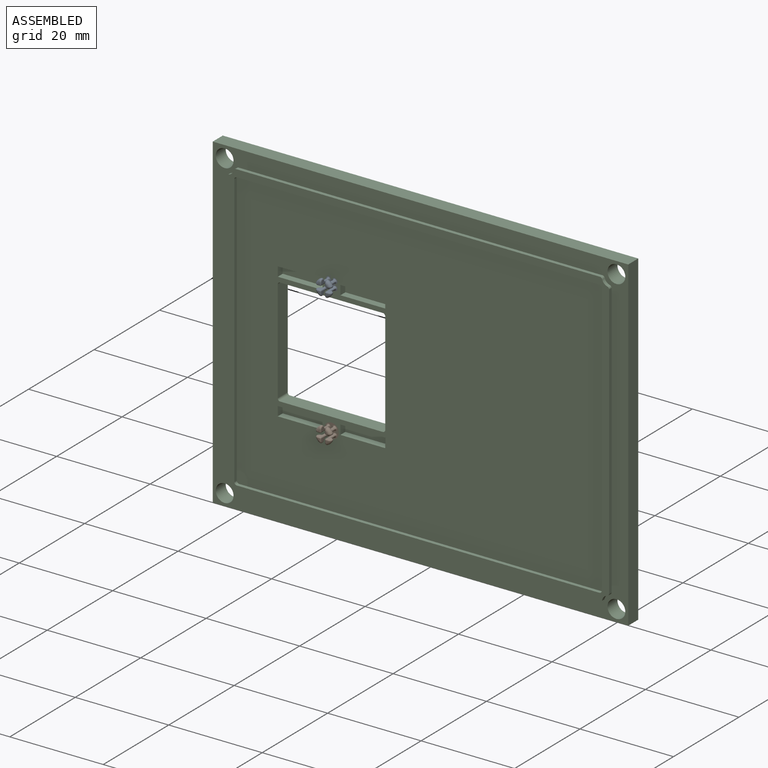
[diagram: assembled view]
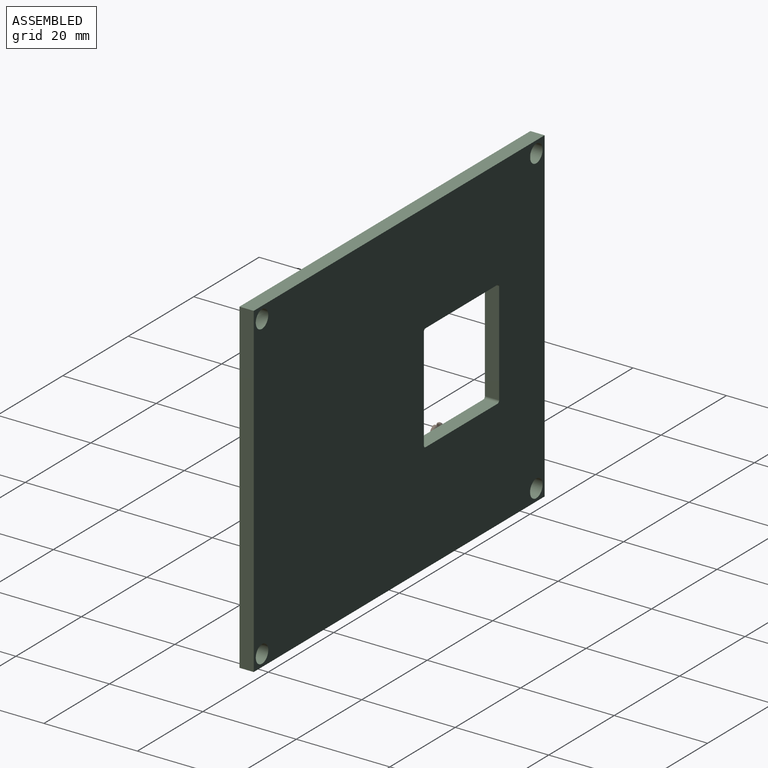
[diagram: assembled view, second angle]
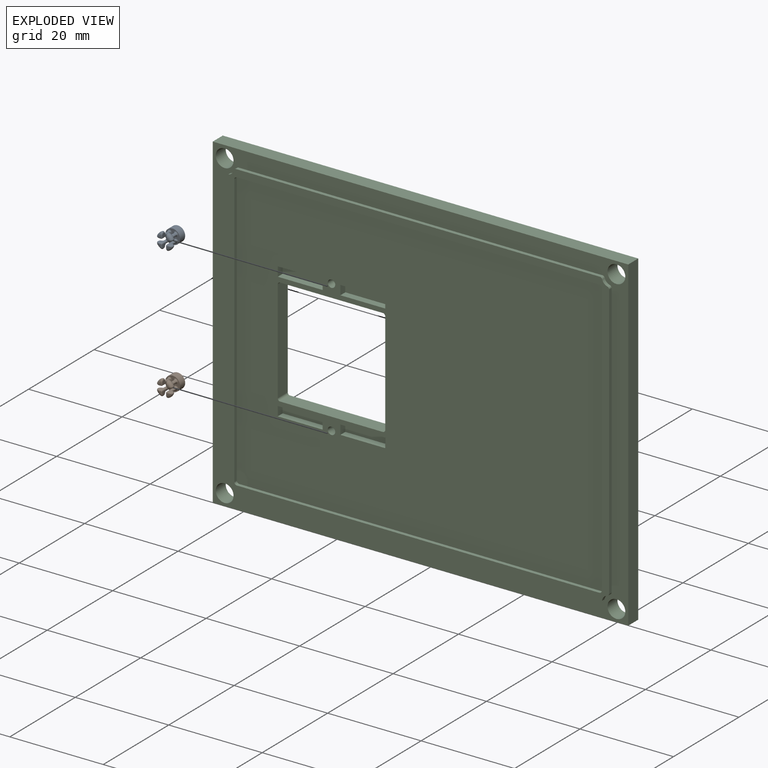
[diagram: exploded view]
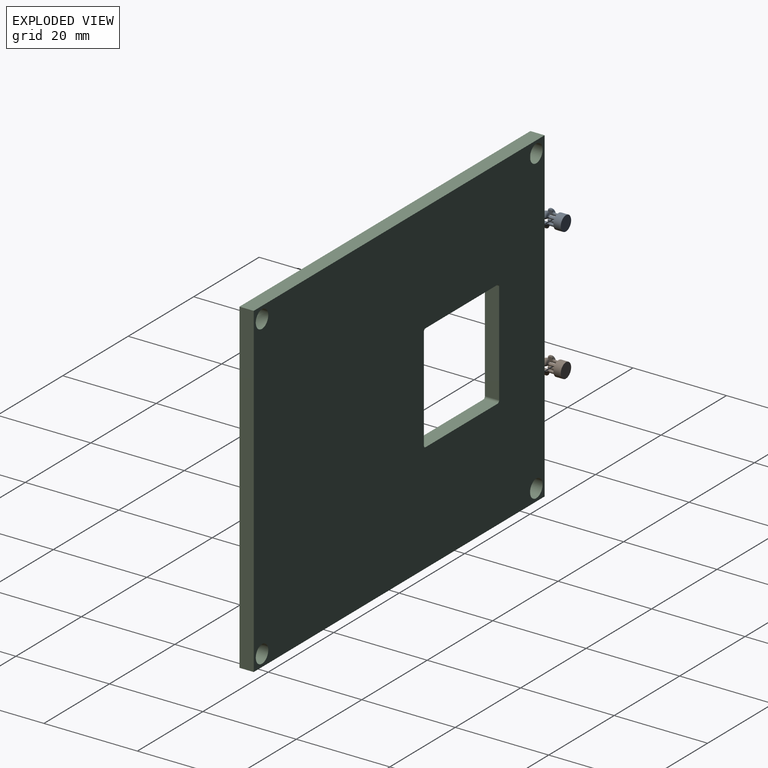
[diagram: exploded view, second angle]
ASSEMBLY  parts=3 mates=2
PART A: 91 faces, bbox 3.7x4.4x3.7 mm
  f0: plane 2.24x0.82mm, normal (-1,0,0), area 0.7mm2, adj f77,f84,f85,f87,f89,f90
  f1: plane 2.24x0.82mm, normal (1,0,0), area 0.7mm2, adj f62,f63,f67,f70,f71,f73
  f2: plane 2.24x0.82mm, normal (0,0,1), area 0.7mm2, adj f42,f48,f51,f52,f55,f56
  f3: cylinder r=1.24mm len=1.07mm, axis (0,1,0), area 0.2mm2, adj f45,f50,f53,f56
  f4: cylinder r=1.24mm len=1.07mm, axis (0,1,0), area 0.2mm2, adj f75,f76,f83,f84
  f5: cylinder r=1.24mm len=1.07mm, axis (0,1,0), area 0.2mm2, adj f60,f68,f69,f73
  f6: torus R=1.24mm, axis (0,-1,0), area 1.8mm2, adj f9,f44,f52,f53
  f7: torus R=1.24mm, axis (0,-1,0), area 1.8mm2, adj f10,f82,f83,f89
  f8: torus R=1.24mm, axis (0,-1,0), area 1.8mm2, adj f11,f59,f67,f68
  f9: plane 0.41x0.41mm, normal (0,-1,0), area 0.1mm2, adj f6,f40,f48
  f10: plane 0.41x0.41mm, normal (0,-1,0), area 0.1mm2, adj f7,f86,f90
  f11: plane 0.41x0.41mm, normal (0,-1,0), area 0.1mm2, adj f8,f57,f63
  f12: cylinder r=1.24mm len=1.07mm, axis (0,1,0), area 0.2mm2, adj f26,f34,f35,f39
  f13: cylinder r=1.59mm len=3.18mm, axis (0,1,0), area 15.8mm2, adj f14,f15
  f14: plane 3.18x3.18mm, normal (0,-1,0), area 4mm2, adj f13,f27,f31,f32,f35,f36,f38,f41
  f15: plane 3.18x3.18mm, normal (0,1,0), area 7.9mm2, adj f13
  f16: torus R=1.24mm, axis (0,-1,0), area 1.8mm2, adj f17,f25,f33,f34
  f17: plane 0.41x0.41mm, normal (0,-1,0), area 0.1mm2, adj f16,f23,f29
  f18: plane 2.24x0.82mm, normal (0,0,-1), area 0.7mm2, adj f57,f59,f60,f61,f62,f64
  f19: plane 2.24x0.82mm, normal (1,0,0), area 0.7mm2, adj f40,f41,f42,f44,f45,f49
  f20: plane 2.24x0.82mm, normal (0,0,1), area 0.7mm2, adj f75,f78,f79,f82,f85,f86
  f21: plane 2.24x0.82mm, normal (0,0,-1), area 0.7mm2, adj f28,f29,f33,f36,f37,f39
  f22: plane 2.24x0.82mm, normal (-1,0,0), area 0.7mm2, adj f23,f25,f26,f27,f28,f30
  f23: cylinder r=0.25mm len=0.41mm, axis (0,0,-1), area 0.2mm2, adj f17,f22,f24,f25
  f24: sphere r=0.25mm, area 0.1mm2, adj f23,f28,f29
  f25: bspline ~1.23x0.95mm, area 0.7mm2, adj f16,f22,f23,f30
  f26: cylinder r=0.25mm len=1.07mm, axis (0,1,0), area 0.6mm2, adj f12,f22,f30,f31
  f27: cylinder r=0.25mm len=0.25mm, axis (0,0,-1), area 0mm2, adj f14,f22,f31,f32
  f28: cylinder r=0.25mm len=2.22mm, axis (0,1,0), area 0.9mm2, adj f21,f22,f24,f32
  f29: cylinder r=0.25mm len=0.41mm, axis (1,0,0), area 0.2mm2, adj f17,f21,f24,f33
  f30: bspline ~0.57x0.56mm, area 0.2mm2, adj f22,f25,f26,f34
  f31: torus R=0.51mm, axis (0,-1,0), area 0.3mm2, adj f14,f26,f27,f35
  f32: torus R=0.51mm, axis (0,-1,0), area 0.2mm2, adj f14,f27,f28,f36
  f33: bspline ~1.23x0.95mm, area 0.7mm2, adj f16,f21,f29,f37
  f34: torus R=1.5mm, axis (0,-1,0), area 0.1mm2, adj f12,f16,f30,f37
  f35: torus R=1.5mm, axis (0,-1,0), area 0.1mm2, adj f12,f14,f31,f38
  f36: cylinder r=0.25mm len=0.25mm, axis (1,0,0), area 0mm2, adj f14,f21,f32,f38
  f37: bspline ~0.6x0.59mm, area 0.2mm2, adj f21,f33,f34,f39
  f38: torus R=0.51mm, axis (0,-1,0), area 0.3mm2, adj f14,f35,f36,f39
  f39: cylinder r=0.25mm len=1.07mm, axis (0,1,0), area 0.6mm2, adj f12,f21,f37,f38
  f40: cylinder r=0.25mm len=0.41mm, axis (0,0,1), area 0.2mm2, adj f9,f19,f43,f44
  f41: cylinder r=0.25mm len=0.25mm, axis (0,0,1), area 0mm2, adj f14,f19,f46,f47
  f42: cylinder r=0.25mm len=2.22mm, axis (0,1,0), area 0.9mm2, adj f2,f19,f43,f47
  f43: sphere r=0.25mm, area 0.1mm2, adj f40,f42,f48
  f44: bspline ~1.23x0.95mm, area 0.7mm2, adj f6,f19,f40,f49
  f45: cylinder r=0.25mm len=1.07mm, axis (0,1,0), area 0.6mm2, adj f3,f19,f46,f49
  f46: torus R=0.51mm, axis (0,-1,0), area 0.3mm2, adj f14,f41,f45,f50
  f47: torus R=0.51mm, axis (0,-1,0), area 0.2mm2, adj f14,f41,f42,f51
  f48: cylinder r=0.25mm len=0.41mm, axis (-1,0,0), area 0.2mm2, adj f2,f9,f43,f52
  f49: bspline ~0.57x0.56mm, area 0.2mm2, adj f19,f44,f45,f53
  f50: torus R=1.5mm, axis (0,-1,0), area 0.1mm2, adj f3,f14,f46,f54
  f51: cylinder r=0.25mm len=0.25mm, axis (-1,0,0), area 0mm2, adj f2,f14,f47,f54
  f52: bspline ~1.23x0.95mm, area 0.7mm2, adj f2,f6,f48,f55
  f53: torus R=1.5mm, axis (0,-1,0), area 0.1mm2, adj f3,f6,f49,f55
  f54: torus R=0.51mm, axis (0,-1,0), area 0.3mm2, adj f14,f50,f51,f56
  f55: bspline ~0.6x0.59mm, area 0.2mm2, adj f2,f52,f53,f56
  f56: cylinder r=0.25mm len=1.07mm, axis (0,1,0), area 0.6mm2, adj f2,f3,f54,f55
  f57: cylinder r=0.25mm len=0.41mm, axis (1,0,0), area 0.2mm2, adj f11,f18,f58,f59
  f58: sphere r=0.25mm, area 0.1mm2, adj f57,f62,f63
  f59: bspline ~1.23x0.95mm, area 0.7mm2, adj f8,f18,f57,f64
  f60: cylinder r=0.25mm len=1.07mm, axis (0,1,0), area 0.6mm2, adj f5,f18,f64,f65
  f61: cylinder r=0.25mm len=0.25mm, axis (1,0,0), area 0mm2, adj f14,f18,f65,f66
  f62: cylinder r=0.25mm len=2.22mm, axis (0,-1,0), area 0.9mm2, adj f1,f18,f58,f66
  f63: cylinder r=0.25mm len=0.41mm, axis (0,0,1), area 0.2mm2, adj f1,f11,f58,f67
  f64: bspline ~0.57x0.56mm, area 0.2mm2, adj f18,f59,f60,f68
  f65: torus R=0.51mm, axis (0,-1,0), area 0.3mm2, adj f14,f60,f61,f69
  f66: torus R=0.51mm, axis (0,-1,0), area 0.2mm2, adj f14,f61,f62,f70
  f67: bspline ~1.23x0.95mm, area 0.7mm2, adj f1,f8,f63,f71
  f68: torus R=1.5mm, axis (0,-1,0), area 0.1mm2, adj f5,f8,f64,f71
  f69: torus R=1.5mm, axis (0,-1,0), area 0.1mm2, adj f5,f14,f65,f72
  f70: cylinder r=0.25mm len=0.25mm, axis (0,0,1), area 0mm2, adj f1,f14,f66,f72
  f71: bspline ~0.6x0.59mm, area 0.2mm2, adj f1,f67,f68,f73
  f72: torus R=0.51mm, axis (0,-1,0), area 0.3mm2, adj f14,f69,f70,f73
  f73: cylinder r=0.25mm len=1.07mm, axis (0,1,0), area 0.6mm2, adj f1,f5,f71,f72
  f74: torus R=0.51mm, axis (0,-1,0), area 0.3mm2, adj f14,f75,f76,f78
  f75: cylinder r=0.25mm len=1.07mm, axis (0,1,0), area 0.6mm2, adj f4,f20,f74,f79
  f76: torus R=1.5mm, axis (0,-1,0), area 0.1mm2, adj f4,f14,f74,f80
  f77: cylinder r=0.25mm len=0.25mm, axis (0,0,-1), area 0mm2, adj f0,f14,f80,f81
  f78: cylinder r=0.25mm len=0.25mm, axis (-1,0,0), area 0mm2, adj f14,f20,f74,f81
  f79: bspline ~0.57x0.56mm, area 0.2mm2, adj f20,f75,f82,f83
  f80: torus R=0.51mm, axis (0,-1,0), area 0.3mm2, adj f14,f76,f77,f84
  f81: torus R=0.51mm, axis (0,-1,0), area 0.2mm2, adj f14,f77,f78,f85
  f82: bspline ~1.23x0.95mm, area 0.7mm2, adj f7,f20,f79,f86
  f83: torus R=1.5mm, axis (0,-1,0), area 0.1mm2, adj f4,f7,f79,f87
  f84: cylinder r=0.25mm len=1.07mm, axis (0,1,0), area 0.6mm2, adj f0,f4,f80,f87
  f85: cylinder r=0.25mm len=2.22mm, axis (0,-1,0), area 0.9mm2, adj f0,f20,f81,f88
  f86: cylinder r=0.25mm len=0.41mm, axis (-1,0,0), area 0.2mm2, adj f10,f20,f82,f88
  f87: bspline ~0.6x0.59mm, area 0.2mm2, adj f0,f83,f84,f89
  f88: sphere r=0.25mm, area 0.1mm2, adj f85,f86,f90
  f89: bspline ~1.23x0.95mm, area 0.7mm2, adj f0,f7,f87,f90
  f90: cylinder r=0.25mm len=0.41mm, axis (0,0,-1), area 0.2mm2, adj f0,f10,f88,f89
PART B: same geometry as A
PART C: 68 faces, bbox 88.9x3.8x69.9 mm
  f0: plane 78.61x59.56mm, normal (0,-1,0), area 4072.6mm2, adj f11,f13,f15,f16,f17,f18,f20,f21
  f1: plane 88.9x69.85mm, normal (0,-1,0), area 1040.4mm2, adj f2,f3,f4,f5,f6,f7,f8,f9
  f2: plane 88.9x3.05mm, normal (0,0,-1), area 271mm2, adj f1,f3,f9,f10
  f3: plane 69.85x3.05mm, normal (1,0,0), area 212.9mm2, adj f1,f2,f4,f10
  f4: plane 88.9x3.05mm, normal (0,0,1), area 271mm2, adj f1,f3,f9,f10
  f5: cylinder r=1.91mm len=3.81mm, axis (0,1,0), area 36.5mm2, adj f1,f10
  f6: cylinder r=1.91mm len=3.81mm, axis (0,1,0), area 36.5mm2, adj f1,f10
  f7: cylinder r=1.91mm len=3.81mm, axis (0,1,0), area 36.5mm2, adj f1,f10
  f8: cylinder r=1.91mm len=3.81mm, axis (0,1,0), area 36.5mm2, adj f1,f10
  f9: plane 69.85x3.05mm, normal (-1,0,0), area 212.9mm2, adj f1,f2,f4,f10
  f10: plane 88.9x69.85mm, normal (0,1,0), area 5635.3mm2, adj f2,f3,f4,f5,f6,f7,f8,f9
  f11: cylinder r=0.8mm len=2.54mm, axis (0,-1,0), area 12.8mm2, adj f0,f12
  f12: plane 1.6x1.6mm, normal (0,-1,0), area 2mm2, adj f11
  f13: cylinder r=0.8mm len=2.54mm, axis (0,-1,0), area 12.8mm2, adj f0,f14
  f14: plane 1.6x1.6mm, normal (0,-1,0), area 2mm2, adj f13
  f15: plane 2x1.5mm, normal (-1,0,0), area 3mm2, adj f0,f16,f18,f19
  f16: plane 9.6x1.5mm, normal (0,0,-1), area 14.4mm2, adj f0,f15,f17,f19
  f17: plane 2x1.5mm, normal (1,0,0), area 3mm2, adj f0,f16,f18,f19
  f18: plane 9.6x1.5mm, normal (0,0,1), area 14.4mm2, adj f0,f15,f17,f19
  f19: plane 9.6x2mm, normal (0,-1,0), area 19.2mm2, adj f15,f16,f17,f18
  f20: plane 2x1.5mm, normal (-1,0,0), area 3mm2, adj f0,f21,f23,f24
  f21: plane 9.6x1.5mm, normal (0,0,-1), area 14.4mm2, adj f0,f20,f22,f24
  f22: plane 2x1.5mm, normal (1,0,0), area 3mm2, adj f0,f21,f23,f24
  f23: plane 9.6x1.5mm, normal (0,0,1), area 14.4mm2, adj f0,f20,f22,f24
  f24: plane 9.6x2mm, normal (0,-1,0), area 19.2mm2, adj f20,f21,f22,f23
  f25: plane 9.6x1.5mm, normal (0,0,1), area 14.4mm2, adj f0,f26,f28,f29
  f26: plane 2x1.5mm, normal (-1,0,0), area 3mm2, adj f0,f25,f27,f29
  f27: plane 9.6x1.5mm, normal (0,0,-1), area 14.4mm2, adj f0,f26,f28,f29
  f28: plane 2x1.5mm, normal (1,0,0), area 3mm2, adj f0,f25,f27,f29
  f29: plane 9.6x2mm, normal (0,-1,0), area 19.2mm2, adj f25,f26,f27,f28
  f30: plane 2x1.5mm, normal (1,0,0), area 3mm2, adj f0,f31,f33,f34
  f31: plane 9.6x1.5mm, normal (0,0,1), area 14.4mm2, adj f0,f30,f32,f34
  f32: plane 2x1.5mm, normal (-1,0,0), area 3mm2, adj f0,f31,f33,f34
  f33: plane 9.6x1.5mm, normal (0,0,-1), area 14.4mm2, adj f0,f30,f32,f34
  f34: plane 9.6x2mm, normal (0,-1,0), area 19.2mm2, adj f30,f31,f32,f33
  f35: cylinder r=0.51mm len=3.05mm, axis (0,-1,0), area 2.4mm2, adj f0,f10,f36,f42
  f36: plane 21.98x3.05mm, normal (0,0,1), area 67mm2, adj f0,f10,f35,f37
  f37: cylinder r=0.51mm len=3.05mm, axis (0,-1,0), area 2.4mm2, adj f0,f10,f36,f38
  f38: plane 21.98x3.05mm, normal (-1,0,0), area 67mm2, adj f0,f10,f37,f39
  f39: cylinder r=0.51mm len=3.05mm, axis (0,-1,0), area 2.4mm2, adj f0,f10,f38,f40
  f40: plane 21.98x3.05mm, normal (0,0,-1), area 67mm2, adj f0,f10,f39,f41
  f41: cylinder r=0.51mm len=3.05mm, axis (0,-1,0), area 2.4mm2, adj f0,f10,f40,f42
  f42: plane 21.98x3.05mm, normal (1,0,0), area 67mm2, adj f0,f10,f35,f41
  f43: cylinder r=1.52mm len=1.09mm, axis (0,1,0), area 1.2mm2, adj f1,f44,f66,f67
  f44: cylinder r=0.51mm len=0.76mm, axis (0,1,0), area 0.5mm2, adj f1,f43,f45,f67
  f45: plane 58.8x0.76mm, normal (-1,0,0), area 44.8mm2, adj f1,f44,f46,f67
  f46: cylinder r=0.51mm len=0.76mm, axis (0,1,0), area 0.5mm2, adj f1,f45,f47,f67
  f47: cylinder r=1.52mm len=1.09mm, axis (0,1,0), area 1.2mm2, adj f1,f46,f48,f67
  f48: cylinder r=0.51mm len=0.76mm, axis (0,1,0), area 0.5mm2, adj f1,f47,f49,f67
  f49: plane 77.85x0.76mm, normal (0,0,-1), area 59.3mm2, adj f1,f48,f50,f67
  f50: cylinder r=0.51mm len=0.76mm, axis (0,1,0), area 0.5mm2, adj f1,f49,f51,f67
  f51: cylinder r=1.52mm len=1.09mm, axis (0,1,0), area 1.2mm2, adj f1,f50,f52,f67
  f52: cylinder r=0.51mm len=0.76mm, axis (0,1,0), area 0.5mm2, adj f1,f51,f53,f67
  f53: plane 58.8x0.76mm, normal (1,0,0), area 44.8mm2, adj f1,f52,f54,f67
  f54: cylinder r=0.51mm len=0.76mm, axis (0,1,0), area 0.5mm2, adj f1,f53,f55,f67
  f55: cylinder r=1.52mm len=1.09mm, axis (0,1,0), area 1.2mm2, adj f1,f54,f56,f67
  f56: cylinder r=0.51mm len=0.76mm, axis (0,1,0), area 0.5mm2, adj f1,f55,f57,f67
  f57: plane 77.85x0.76mm, normal (0,0,1), area 59.3mm2, adj f1,f56,f66,f67
  f58: plane 77.6x0.76mm, normal (0,0,1), area 59.1mm2, adj f0,f59,f65,f67
  f59: cylinder r=0.51mm len=0.76mm, axis (0,1,0), area 0.6mm2, adj f0,f58,f60,f67
  f60: plane 58.55x0.76mm, normal (1,0,0), area 44.6mm2, adj f0,f59,f61,f67
  f61: cylinder r=0.51mm len=0.76mm, axis (0,1,0), area 0.6mm2, adj f0,f60,f62,f67
  f62: plane 77.6x0.76mm, normal (0,0,-1), area 59.1mm2, adj f0,f61,f63,f67
  f63: cylinder r=0.51mm len=0.76mm, axis (0,1,0), area 0.6mm2, adj f0,f62,f64,f67
  f64: plane 58.55x0.76mm, normal (-1,0,0), area 44.6mm2, adj f0,f63,f65,f67
  f65: cylinder r=0.51mm len=0.76mm, axis (0,1,0), area 0.6mm2, adj f0,f58,f64,f67
  f66: cylinder r=0.51mm len=0.76mm, axis (0,1,0), area 0.5mm2, adj f1,f43,f57,f67
  f67: plane 81.79x62.74mm, normal (0,-1,0), area 441.4mm2, adj f43,f44,f45,f46,f47,f48,f49,f50
PLACE A t=(-19.05,-1.46,14.22)mm
PLACE B t=(-19.05,-1.46,-14.22)mm
PLACE C at identity
MATE fastened A.f3 <-> C.f13  axis (0,-1,0) through (-19.05,-3.05,14.22)mm
MATE fastened B.f3 <-> C.f11  axis (0,-1,0) through (-19.05,-3.05,-14.22)mm
